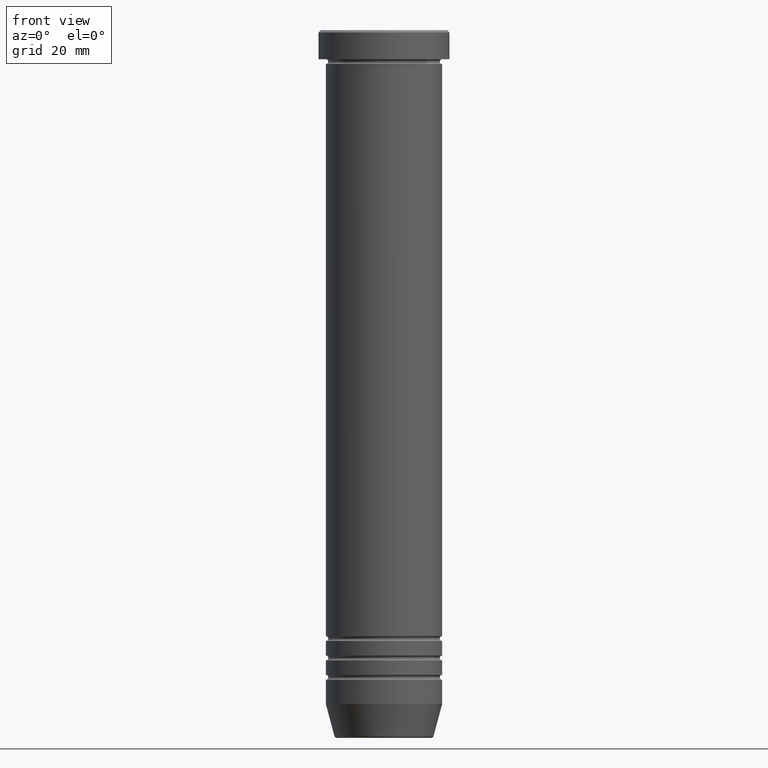
[diagram: clean part render]
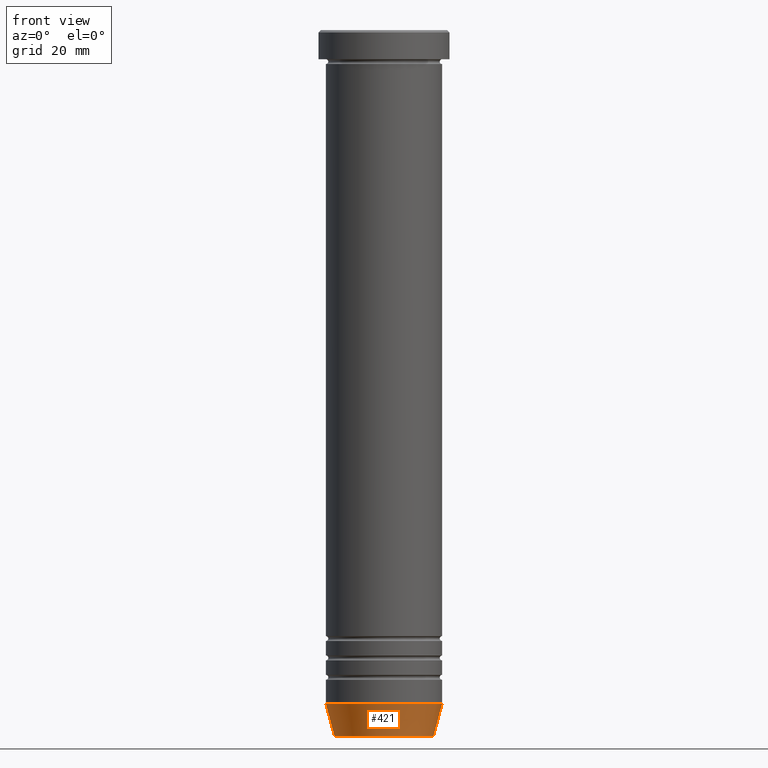
[diagram: same view with one face highlighted and labeled with its STEP entity id]
A machine part, front view. The second image highlights one B-rep face of the part: STEP entity #421.
In plain terms, the highlighted conical surface has half-angle 15 deg.
Its self-contained STEP definition (entity closure, byte-faithful):
#19 = LINE ( 'NONE', #514, #898 ) ;
#47 = VERTEX_POINT ( 'NONE', #738 ) ;
#51 = VECTOR ( 'NONE', #186, 1000.000000000000000 ) ;
#101 = CIRCLE ( 'NONE', #607, 10.22365507213718949 ) ;
#115 = CARTESIAN_POINT ( 'NONE',  ( -12.00000000000000178, 1.469576158976824144E-15, -139.0000000000000000 ) ) ;
#118 = VERTEX_POINT ( 'NONE', #874 ) ;
#135 = AXIS2_PLACEMENT_3D ( 'NONE', #868, #593, #1046 ) ;
#186 = DIRECTION ( 'NONE',  ( 0.2588190451025213501, 0.000000000000000000, 0.9659258262890680902 ) ) ;
#264 = EDGE_CURVE ( 'NONE', #642, #118, #723, .T. ) ;
#298 = CIRCLE ( 'NONE', #875, 12.00000000000000178 ) ;
#325 = EDGE_LOOP ( 'NONE', ( #407, #820, #962, #763 ) ) ;
#404 = DIRECTION ( 'NONE',  ( -0.000000000000000000, -0.000000000000000000, 1.000000000000000000 ) ) ;
#407 = ORIENTED_EDGE ( 'NONE', *, *, #1021, .F. ) ;
#413 = CARTESIAN_POINT ( 'NONE',  ( 0.000000000000000000, 0.000000000000000000, -139.0000000000000000 ) ) ;
#421 = ADVANCED_FACE ( 'NONE', ( #770 ), #766, .T. ) ;
#427 = EDGE_CURVE ( 'NONE', #1076, #118, #298, .T. ) ;
#514 = CARTESIAN_POINT ( 'NONE',  ( -10.12435565298213724, 1.239875974385398546E-15, -146.0000000000000284 ) ) ;
#593 = DIRECTION ( 'NONE',  ( -0.000000000000000000, -0.000000000000000000, 1.000000000000000000 ) ) ;
#607 = AXIS2_PLACEMENT_3D ( 'NONE', #1147, #818, #990 ) ;
#642 = VERTEX_POINT ( 'NONE', #956 ) ;
#723 = LINE ( 'NONE', #809, #51 ) ;
#736 = DIRECTION ( 'NONE',  ( -0.2588190451025213501, 3.169619151431772337E-17, 0.9659258262890680902 ) ) ;
#738 = CARTESIAN_POINT ( 'NONE',  ( -10.22365507213718949, 1.360806402472382547E-15, -145.6294095225512706 ) ) ;
#763 = ORIENTED_EDGE ( 'NONE', *, *, #427, .F. ) ;
#766 = CONICAL_SURFACE ( 'NONE', #135, 10.12435565298213724, 0.2617993877991500740 ) ;
#770 = FACE_OUTER_BOUND ( 'NONE', #325, .T. ) ;
#809 = CARTESIAN_POINT ( 'NONE',  ( 10.12435565298213724, 0.000000000000000000, -146.0000000000000284 ) ) ;
#818 = DIRECTION ( 'NONE',  ( -0.000000000000000000, -0.000000000000000000, 1.000000000000000000 ) ) ;
#820 = ORIENTED_EDGE ( 'NONE', *, *, #853, .T. ) ;
#853 = EDGE_CURVE ( 'NONE', #47, #642, #101, .T. ) ;
#868 = CARTESIAN_POINT ( 'NONE',  ( 0.000000000000000000, 0.000000000000000000, -146.0000000000000284 ) ) ;
#874 = CARTESIAN_POINT ( 'NONE',  ( 12.00000000000000178, 0.000000000000000000, -139.0000000000000000 ) ) ;
#875 = AXIS2_PLACEMENT_3D ( 'NONE', #413, #404, #1129 ) ;
#898 = VECTOR ( 'NONE', #736, 1000.000000000000000 ) ;
#956 = CARTESIAN_POINT ( 'NONE',  ( 10.22365507213718949, 0.000000000000000000, -145.6294095225512706 ) ) ;
#962 = ORIENTED_EDGE ( 'NONE', *, *, #264, .T. ) ;
#990 = DIRECTION ( 'NONE',  ( -1.000000000000000000, 0.000000000000000000, 0.000000000000000000 ) ) ;
#1021 = EDGE_CURVE ( 'NONE', #47, #1076, #19, .T. ) ;
#1046 = DIRECTION ( 'NONE',  ( 1.000000000000000000, 0.000000000000000000, 0.000000000000000000 ) ) ;
#1076 = VERTEX_POINT ( 'NONE', #115 ) ;
#1129 = DIRECTION ( 'NONE',  ( 1.000000000000000000, 0.000000000000000000, 0.000000000000000000 ) ) ;
#1147 = CARTESIAN_POINT ( 'NONE',  ( 0.000000000000000000, 0.000000000000000000, -145.6294095225512706 ) ) ;